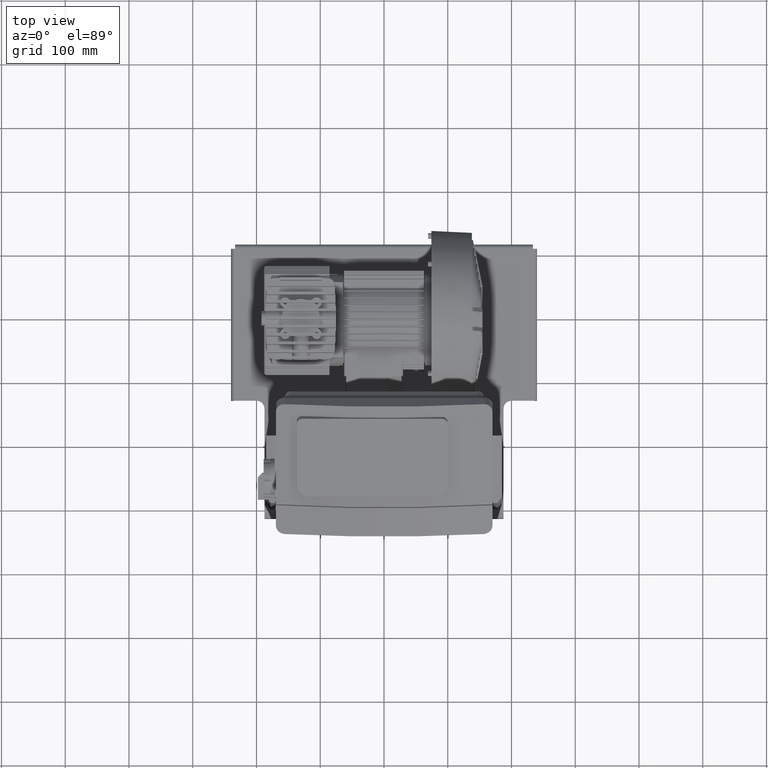
[diagram: clean part render]
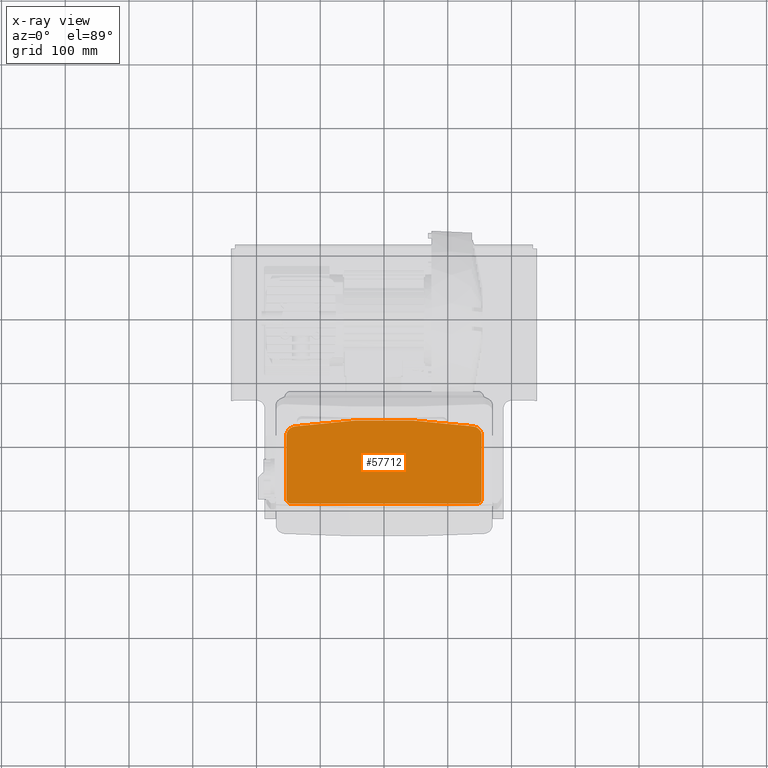
[diagram: x-ray — body ghosted, one internal face saturated and labeled with its STEP entity id]
A machine part, top view, then the same camera in x-ray: the body is ghosted and one INTERNAL B-rep face — a face not visible from any outside direction — is saturated and labeled: STEP entity #57712.
In plain terms, the highlighted planar face has unit normal (0, 0.5, -0.866).
Its self-contained STEP definition (entity closure, byte-faithful):
#57272=CARTESIAN_POINT('',(139.68374495620719,118.26448476684197,791.84643450485635));
#57273=VERTEX_POINT('',#57272);
#57280=CARTESIAN_POINT('',(153.05388968765257,104.65391960672048,783.98837104583754));
#57281=VERTEX_POINT('',#57280);
#57282=CARTESIAN_POINT('',(137.05693485829838,104.59865590547668,783.95646453304801));
#57283=DIRECTION('',(1.188719E-015,-0.5,0.866025403784439));
#57284=DIRECTION('',(-0.999992043742011,-0.003454611339533,-0.001994520786824));
#57285=AXIS2_PLACEMENT_3D('',#57282,#57283,#57284);
#57286=CIRCLE('',#57285,15.997082106266541);
#57287=EDGE_CURVE('',#57281,#57273,#57286,.T.);
#57305=CARTESIAN_POINT('',(-139.57597726725936,118.26439521823647,791.84638280394552));
#57306=VERTEX_POINT('',#57305);
#57313=CARTESIAN_POINT('',(0.054194308658287,-607.8787124057128,372.60746414706671));
#57314=DIRECTION('',(1.068590E-015,-0.5,0.866025403784438));
#57315=DIRECTION('',(-0.164265322846427,-0.854261480919407,-0.493208095967148));
#57316=AXIS2_PLACEMENT_3D('',#57313,#57314,#57315);
#57317=CIRCLE('',#57316,850.02451051759442);
#57318=EDGE_CURVE('',#57273,#57306,#57317,.T.);
#57332=CARTESIAN_POINT('',(-152.94611031234743,104.65382147861499,783.98831439154981));
#57333=VERTEX_POINT('',#57332);
#57340=CARTESIAN_POINT('',(-136.94915516260278,104.59856784724104,783.95641369260227));
#57341=DIRECTION('',(1.068590E-015,-0.5,0.866025403784439));
#57342=DIRECTION('',(0.16420632476679,-0.85426998787265,-0.493213007458893));
#57343=AXIS2_PLACEMENT_3D('',#57340,#57341,#57342);
#57344=CIRCLE('',#57343,15.997082380275335);
#57345=EDGE_CURVE('',#57306,#57333,#57344,.T.);
#57356=CARTESIAN_POINT('',(-145.64611031234739,-1.899510646844306,722.46971940586388));
#57357=VERTEX_POINT('',#57356);
#57364=CARTESIAN_POINT('',(-152.9461103123474,4.42247480078197,726.11971940586386));
#57365=VERTEX_POINT('',#57364);
#57366=CARTESIAN_POINT('',(-145.64611031234739,4.42247480078197,726.11971940586386));
#57367=DIRECTION('',(0.0,-0.5,0.866025403784439));
#57368=DIRECTION('',(1.0,0.0,0.0));
#57369=AXIS2_PLACEMENT_3D('',#57366,#57367,#57368);
#57370=CIRCLE('',#57369,7.299999999999999);
#57371=EDGE_CURVE('',#57365,#57357,#57370,.T.);
#57391=CARTESIAN_POINT('',(153.0538896876526,4.422474800781743,726.11971940586363));
#57392=VERTEX_POINT('',#57391);
#57399=CARTESIAN_POINT('',(145.75388968765262,-1.899510646844533,722.46971940586366));
#57400=VERTEX_POINT('',#57399);
#57401=CARTESIAN_POINT('',(145.75388968765262,4.422474800781743,726.11971940586363));
#57402=DIRECTION('',(1.051275E-015,-0.5,0.866025403784438));
#57403=DIRECTION('',(-1.224606E-016,0.866025403784438,0.5));
#57404=AXIS2_PLACEMENT_3D('',#57401,#57402,#57403);
#57405=CIRCLE('',#57404,7.300000000000003);
#57406=EDGE_CURVE('',#57400,#57392,#57405,.T.);
#57426=CARTESIAN_POINT('',(-152.94611031234743,104.65382147861516,783.98831439154947));
#57427=DIRECTION('',(2.455711E-016,-0.866025403784439,-0.5));
#57428=VECTOR('',#57427,115.73718997137138);
#57429=LINE('',#57426,#57428);
#57430=EDGE_CURVE('',#57333,#57365,#57429,.T.);
#57441=CARTESIAN_POINT('',(153.05388968765266,104.65391960672059,783.98837104583731));
#57442=DIRECTION('',(2.455709E-016,-0.866025403784438,-0.5));
#57443=VECTOR('',#57442,115.73730327994777);
#57444=LINE('',#57441,#57443);
#57445=EDGE_CURVE('',#57281,#57392,#57444,.T.);
#57460=CARTESIAN_POINT('',(145.75388968765262,-1.899510646844538,722.46971940586366));
#57461=DIRECTION('',(-1.0,0.0,0.0));
#57462=VECTOR('',#57461,291.39999999999998);
#57463=LINE('',#57460,#57462);
#57464=EDGE_CURVE('',#57400,#57357,#57463,.T.);
#57697=CARTESIAN_POINT('',(-0.95101758473515,24.740184031367903,737.85015429945929));
#57698=DIRECTION('',(0.0,0.500000000000002,-0.866025403784438));
#57699=DIRECTION('',(1.0,0.0,0.0));
#57700=AXIS2_PLACEMENT_3D('',#57697,#57698,#57699);
#57701=PLANE('',#57700);
#57702=ORIENTED_EDGE('',*,*,#57287,.T.);
#57703=ORIENTED_EDGE('',*,*,#57318,.T.);
#57704=ORIENTED_EDGE('',*,*,#57345,.T.);
#57705=ORIENTED_EDGE('',*,*,#57430,.T.);
#57706=ORIENTED_EDGE('',*,*,#57371,.T.);
#57707=ORIENTED_EDGE('',*,*,#57464,.F.);
#57708=ORIENTED_EDGE('',*,*,#57406,.T.);
#57709=ORIENTED_EDGE('',*,*,#57445,.F.);
#57710=EDGE_LOOP('',(#57702,#57703,#57704,#57705,#57706,#57707,#57708,#57709));
#57711=FACE_OUTER_BOUND('',#57710,.T.);
#57712=ADVANCED_FACE('',(#57711),#57701,.F.);